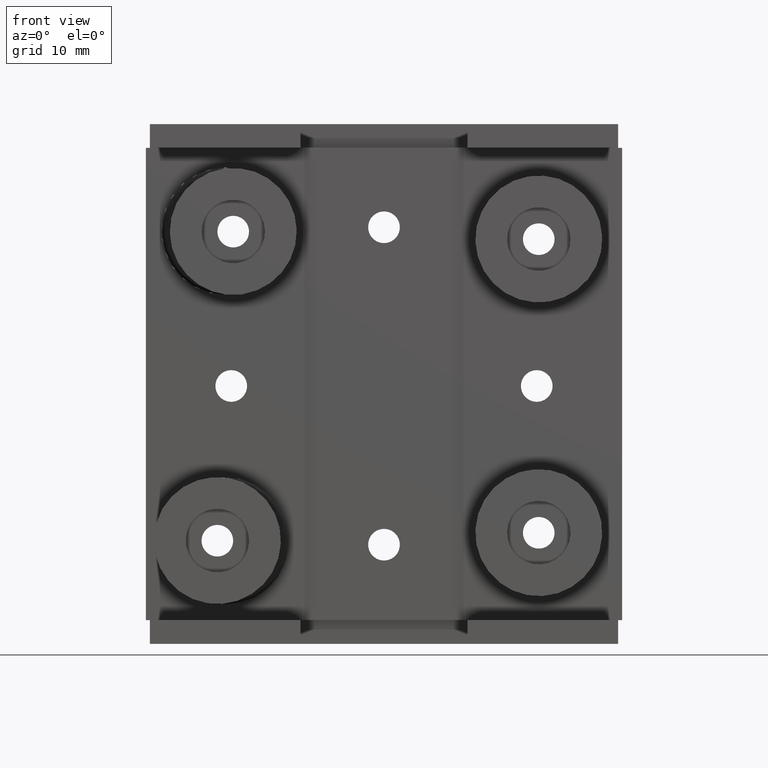
[diagram: clean part render]
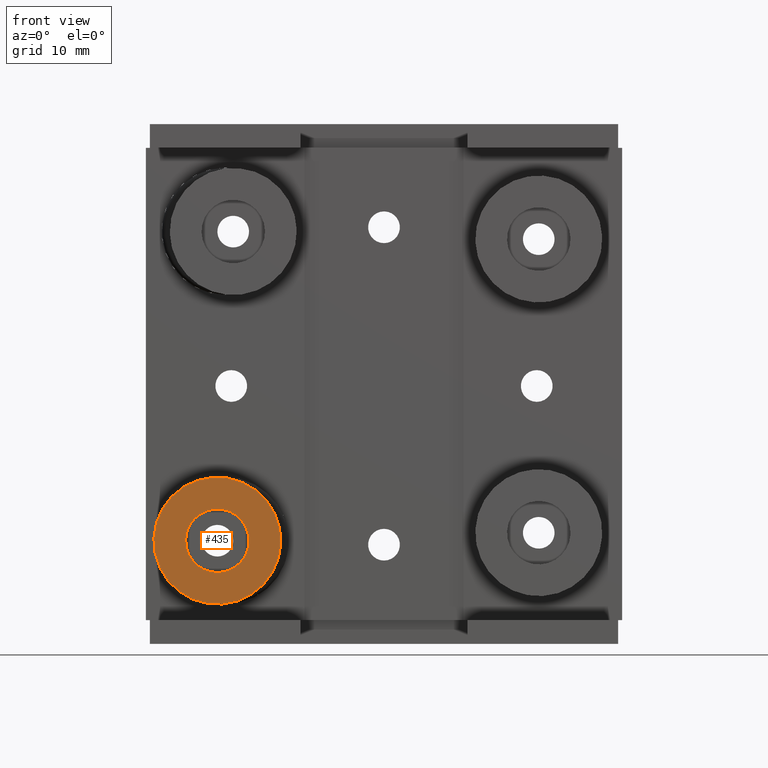
[diagram: same view with one face highlighted and labeled with its STEP entity id]
A machine part, front view. The second image highlights one B-rep face of the part: STEP entity #435.
In plain terms, the highlighted planar face has unit normal (0, 1, 0).
Its self-contained STEP definition (entity closure, byte-faithful):
#71 = DIRECTION ( 'NONE',  ( -0.000000000000000000, -0.000000000000000000, 1.000000000000000000 ) ) ;
#121 = VERTEX_POINT ( 'NONE', #2235 ) ;
#367 = AXIS2_PLACEMENT_3D ( 'NONE', #576, #597, #3125 ) ;
#393 = DIRECTION ( 'NONE',  ( 1.000000000000000000, 0.000000000000000000, 0.000000000000000000 ) ) ;
#425 = CARTESIAN_POINT ( 'NONE',  ( 0.000000000000000000, 0.000000000000000000, 8.000000000000001776 ) ) ;
#435 = ADVANCED_FACE ( 'NONE', ( #1372, #3111 ), #1123, .F. ) ;
#438 = VERTEX_POINT ( 'NONE', #1337 ) ;
#479 = EDGE_CURVE ( 'NONE', #3283, #1365, #1748, .T. ) ;
#512 = ORIENTED_EDGE ( 'NONE', *, *, #3031, .F. ) ;
#576 = CARTESIAN_POINT ( 'NONE',  ( 0.000000000000000000, 0.000000000000000000, 8.000000000000001776 ) ) ;
#597 = DIRECTION ( 'NONE',  ( 0.000000000000000000, 0.000000000000000000, -1.000000000000000000 ) ) ;
#635 = ORIENTED_EDGE ( 'NONE', *, *, #2317, .T. ) ;
#868 = CARTESIAN_POINT ( 'NONE',  ( 0.000000000000000000, 0.000000000000000000, 8.000000000000001776 ) ) ;
#888 = ORIENTED_EDGE ( 'NONE', *, *, #479, .T. ) ;
#1123 = PLANE ( 'NONE',  #367 ) ;
#1298 = AXIS2_PLACEMENT_3D ( 'NONE', #3176, #2151, #393 ) ;
#1337 = CARTESIAN_POINT ( 'NONE',  ( -4.000000000000000000, 4.898587196589412829E-16, 8.000000000000001776 ) ) ;
#1365 = VERTEX_POINT ( 'NONE', #2450 ) ;
#1372 = FACE_BOUND ( 'NONE', #1388, .T. ) ;
#1388 = EDGE_LOOP ( 'NONE', ( #2857, #512 ) ) ;
#1748 = CIRCLE ( 'NONE', #2452, 8.000000000000000000 ) ;
#1772 = CIRCLE ( 'NONE', #2102, 8.000000000000000000 ) ;
#2017 = EDGE_CURVE ( 'NONE', #121, #438, #2266, .T. ) ;
#2102 = AXIS2_PLACEMENT_3D ( 'NONE', #425, #3194, #2264 ) ;
#2104 = EDGE_LOOP ( 'NONE', ( #635, #888 ) ) ;
#2151 = DIRECTION ( 'NONE',  ( 0.000000000000000000, 0.000000000000000000, 1.000000000000000000 ) ) ;
#2235 = CARTESIAN_POINT ( 'NONE',  ( 4.000000000000000000, 0.000000000000000000, 8.000000000000001776 ) ) ;
#2264 = DIRECTION ( 'NONE',  ( 1.000000000000000000, 0.000000000000000000, 0.000000000000000000 ) ) ;
#2266 = CIRCLE ( 'NONE', #1298, 4.000000000000000000 ) ;
#2272 = AXIS2_PLACEMENT_3D ( 'NONE', #868, #2913, #2889 ) ;
#2279 = CIRCLE ( 'NONE', #2272, 4.000000000000000000 ) ;
#2317 = EDGE_CURVE ( 'NONE', #1365, #3283, #1772, .T. ) ;
#2450 = CARTESIAN_POINT ( 'NONE',  ( 8.000000000000000000, 0.000000000000000000, 8.000000000000001776 ) ) ;
#2452 = AXIS2_PLACEMENT_3D ( 'NONE', #2569, #71, #2619 ) ;
#2569 = CARTESIAN_POINT ( 'NONE',  ( 0.000000000000000000, 0.000000000000000000, 8.000000000000001776 ) ) ;
#2575 = CARTESIAN_POINT ( 'NONE',  ( -8.000000000000000000, 9.797174393178827630E-16, 8.000000000000001776 ) ) ;
#2619 = DIRECTION ( 'NONE',  ( 1.000000000000000000, 0.000000000000000000, 0.000000000000000000 ) ) ;
#2857 = ORIENTED_EDGE ( 'NONE', *, *, #2017, .F. ) ;
#2889 = DIRECTION ( 'NONE',  ( 1.000000000000000000, 0.000000000000000000, 0.000000000000000000 ) ) ;
#2913 = DIRECTION ( 'NONE',  ( 0.000000000000000000, 0.000000000000000000, 1.000000000000000000 ) ) ;
#3031 = EDGE_CURVE ( 'NONE', #438, #121, #2279, .T. ) ;
#3111 = FACE_OUTER_BOUND ( 'NONE', #2104, .T. ) ;
#3125 = DIRECTION ( 'NONE',  ( -1.000000000000000000, 0.000000000000000000, -0.000000000000000000 ) ) ;
#3176 = CARTESIAN_POINT ( 'NONE',  ( 0.000000000000000000, 0.000000000000000000, 8.000000000000001776 ) ) ;
#3194 = DIRECTION ( 'NONE',  ( -0.000000000000000000, -0.000000000000000000, 1.000000000000000000 ) ) ;
#3283 = VERTEX_POINT ( 'NONE', #2575 ) ;